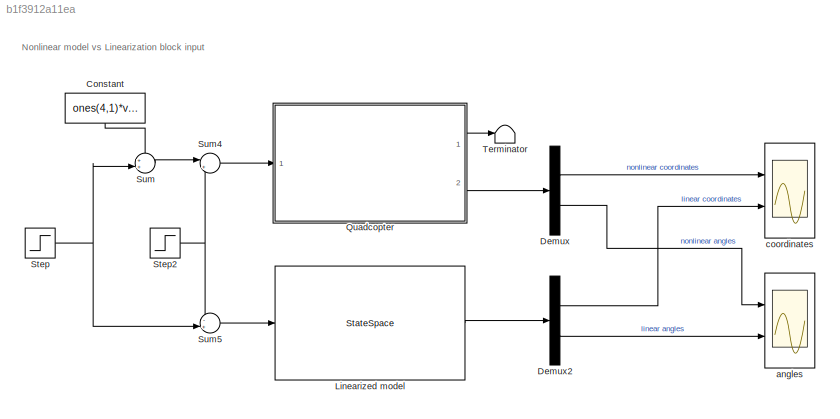
MODEL slx_b1f3912a11ea
KIND model
CONFIG AbsTol = auto
CONFIG EnableMultiTasking = on
CONFIG FixedStep = auto
CONFIG MaxStep = auto
CONFIG MinStep = auto
CONFIG RelTol = 1e-6
CONFIG SampleTimeConstraint = Unconstrained
CONFIG Solver = ode45
CONFIG SolverName = ode45
CONFIG StartTime = 0.0
CONFIG StopTime = 20
BLOCK [Constant] Constant
  Value = ones(4,1)*v_ss
BLOCK [Demux] Demux
  DisplayOption = bar
  Outputs = 2
  Ports = [1, 2]
BLOCK [Demux] Demux2
  DisplayOption = bar
  Outputs = 2
  Ports = [1, 2]
BLOCK [StateSpace] Linearized model 
  A = A
  B = B
  C = C
  D = D
  InitialCondition = 0
  Ports = [1, 1]
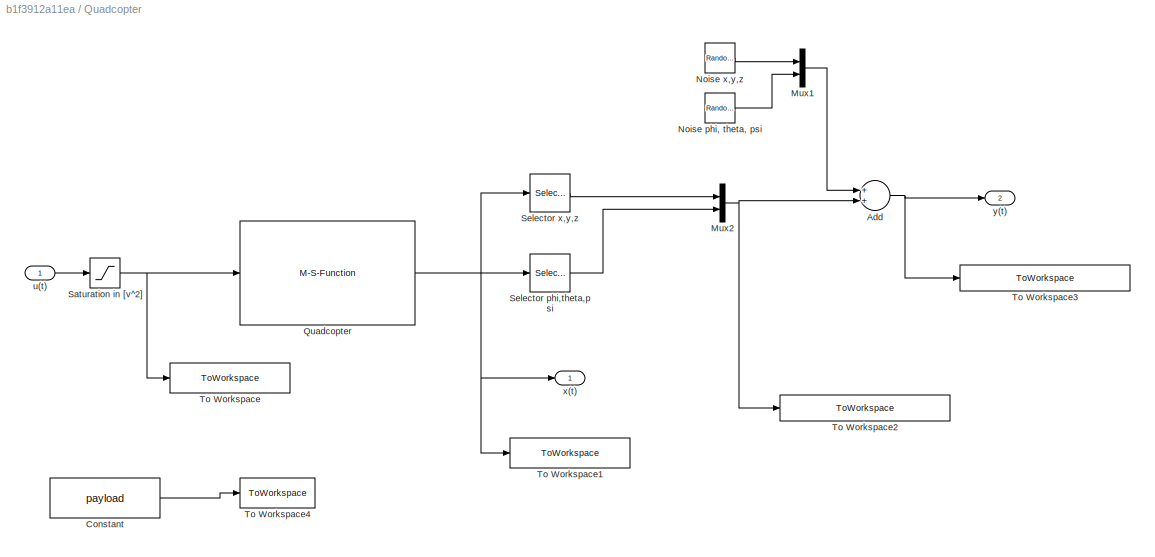
BLOCK [SubSystem] Quadcopter
  Permissions = NoReadOrWrite
  Ports = [1, 2]
  RequestExecContextInheritance = off
BLOCK [Sum] Quadcopter/Add
  InputSameDT = off
  OutDataTypeStr = Inherit: Inherit via internal rule
  Ports = [2, 1]
  SaturateOnIntegerOverflow = off
BLOCK [Constant] Quadcopter/Constant
  Value = payload
BLOCK [Mux] Quadcopter/Mux1
  DisplayOption = bar
  Inputs = 2
  Ports = [2, 1]
BLOCK [Mux] Quadcopter/Mux2
  DisplayOption = bar
  Inputs = 2
  Ports = [2, 1]
BLOCK [RandomNumber] Quadcopter/Noise  x,y,z
  SampleTime = 0.05
  Variance = [1 1 1]*(0.005)^2
BLOCK [RandomNumber] Quadcopter/Noise phi, theta, psi
  SampleTime = 0.05
  Variance = [1 1 1]*(0.0087)^2
BLOCK [M-S-Function] Quadcopter/Quadcopter
  FunctionName = quadcopter_sfunction
  Parameters = x0, payload
  Ports = [1, 1]
BLOCK [Saturate] Quadcopter/Saturation in [v^2]
  InputPortMap = u0
  LowerLimit = 0
  Ports = [1, 1]
  UpperLimit = 100
BLOCK [Selector] Quadcopter/Selector phi,theta,psi
  IndexOptions = Index vector (dialog)
  Indices = [7 8 9]
  OutputSizes = 1
  Ports = [1, 1]
BLOCK [Selector] Quadcopter/Selector x,y,z
  IndexOptions = Index vector (dialog)
  Indices = [1 2 3]
  OutputSizes = 1
  Ports = [1, 1]
BLOCK [ToWorkspace] Quadcopter/To Workspace
  MaxDataPoints = inf
  Ports = [1]
  SampleTime = -1
  SaveFormat = Structure With Time
  VariableName = inputs_quadcopter
BLOCK [ToWorkspace] Quadcopter/To Workspace1
  MaxDataPoints = inf
  Ports = [1]
  SampleTime = -1
  SaveFormat = Structure With Time
  VariableName = states_quadcopter
BLOCK [ToWorkspace] Quadcopter/To Workspace2
  MaxDataPoints = inf
  Ports = [1]
  SampleTime = -1
  SaveFormat = Structure With Time
  VariableName = outputs_quadcopter_nonoise
BLOCK [ToWorkspace] Quadcopter/To Workspace3
  MaxDataPoints = inf
  Ports = [1]
  SampleTime = -1
  SaveFormat = Structure With Time
  VariableName = outputs_quadcopter_noise
BLOCK [ToWorkspace] Quadcopter/To Workspace4
  MaxDataPoints = inf
  Ports = [1]
  SampleTime = -1
  VariableName = payload_quadcopter
BLOCK [Inport] Quadcopter/u(t)
  IconDisplay = Port number
BLOCK [Outport] Quadcopter/x(t)
  IconDisplay = Port number
BLOCK [Outport] Quadcopter/y(t)
  IconDisplay = Port number
  Port = 2
BLOCK [Step] Step
  After = ones(4,1)*5
  Before = zeros(4,1)
  SampleTime = 0
BLOCK [Step] Step2
  After = ones(4,1)*5
  Before = zeros(4,1)
  SampleTime = Ts
  Time = 4
BLOCK [Sum] Sum
  IconShape = round
  InputSameDT = off
  Inputs = ++|
  OutDataTypeStr = Inherit: Inherit via internal rule
  Ports = [2, 1]
  SaturateOnIntegerOverflow = off
BLOCK [Sum] Sum4
  IconShape = round
  InputSameDT = off
  Inputs = |+-
  OutDataTypeStr = Inherit: Inherit via internal rule
  Ports = [2, 1]
  SaturateOnIntegerOverflow = off
BLOCK [Sum] Sum5
  IconShape = round
  InputSameDT = off
  Inputs = -+|
  OutDataTypeStr = Inherit: Inherit via internal rule
  Ports = [2, 1]
  SaturateOnIntegerOverflow = off
BLOCK [Terminator] Terminator
BLOCK [Scope] angles 
  Floating = off
  NumInputPorts = 2
  Ports = [2]
  ScopeSpecificationString = Simulink.scopes.TimeScopeBlockCfg('CurrentConfiguration', extmgr.ConfigurationSet(extmgr.Configuration('Core','General UI',true),extmgr.Configuration('Core','Source UI',true),extmgr.Configuration('Sources','WiredSimulink',true,'DataLoggingVariableName','ScopeData1'),extmgr.Configuration('Visuals','Time Domain',true,'SerializedDisplays',{struct('MinYLimReal','-0.0316','MaxYLimReal','0.03451','YLabe...<+2108ch>
BLOCK [Scope] coordinates 
  Floating = off
  NumInputPorts = 2
  Ports = [2]
  ScopeSpecificationString = Simulink.scopes.TimeScopeBlockCfg('CurrentConfiguration', extmgr.ConfigurationSet(extmgr.Configuration('Core','General UI',true),extmgr.Configuration('Core','Source UI',true),extmgr.Configuration('Sources','WiredSimulink',true),extmgr.Configuration('Visuals','Time Domain',true,'SerializedDisplays',{struct('MinYLimReal','-0.91696','MaxYLimReal','8.109','YLabelReal','','MinYLimMag','0.00000','MaxYLi...<+2164ch>
ANNOTATION (root): Nonlinear model vs Linearization block input
LINE Constant:1 -> Sum:1
LINE Demux2:1 -> coordinates :2
LINE Demux2:2 -> angles :2
LINE Demux:1 -> coordinates :1
LINE Demux:2 -> angles :1
LINE Linearized model :1 -> Demux2:1
NET Quadcopter/Add:1 -> Quadcopter/To Workspace3:1, Quadcopter/y(t):1
LINE Quadcopter/Constant:1 -> Quadcopter/To Workspace4:1
LINE Quadcopter/Mux1:1 -> Quadcopter/Add:1
NET Quadcopter/Mux2:1 -> Quadcopter/Add:2, Quadcopter/To Workspace2:1
LINE Quadcopter/Noise  x,y,z:1 -> Quadcopter/Mux1:1
LINE Quadcopter/Noise phi, theta, psi:1 -> Quadcopter/Mux1:2
NET Quadcopter/Quadcopter:1 -> Quadcopter/Selector phi,theta,psi:1, Quadcopter/Selector x,y,z:1, Quadcopter/To Workspace1:1, Quadcopter/x(t):1
NET Quadcopter/Saturation in [v^2]:1 -> Quadcopter/Quadcopter:1, Quadcopter/To Workspace:1
LINE Quadcopter/Selector phi,theta,psi:1 -> Quadcopter/Mux2:2
LINE Quadcopter/Selector x,y,z:1 -> Quadcopter/Mux2:1
LINE Quadcopter/u(t):1 -> Quadcopter/Saturation in [v^2]:1
LINE Quadcopter:1 -> Terminator:1
LINE Quadcopter:2 -> Demux:1
NET Step2:1 -> Sum4:2, Sum5:1
NET Step:1 -> Sum5:2, Sum:2
LINE Sum4:1 -> Quadcopter:1
LINE Sum5:1 -> Linearized model :1
LINE Sum:1 -> Sum4:1
note: NET lines group one-source signal fan-out (src -> all destinations, sorted); 1:1 wires keep LINE
